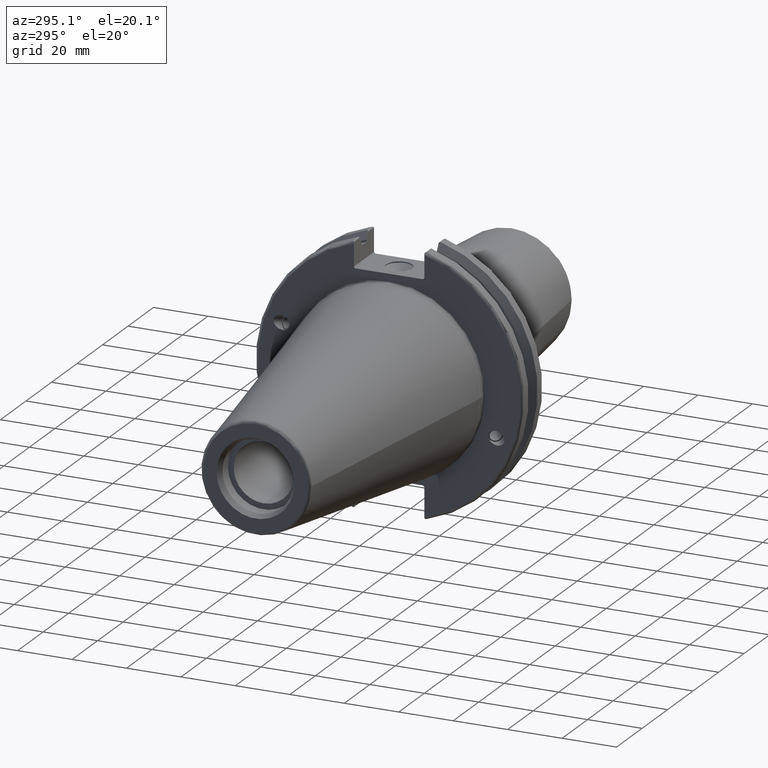
[diagram: clean part render]
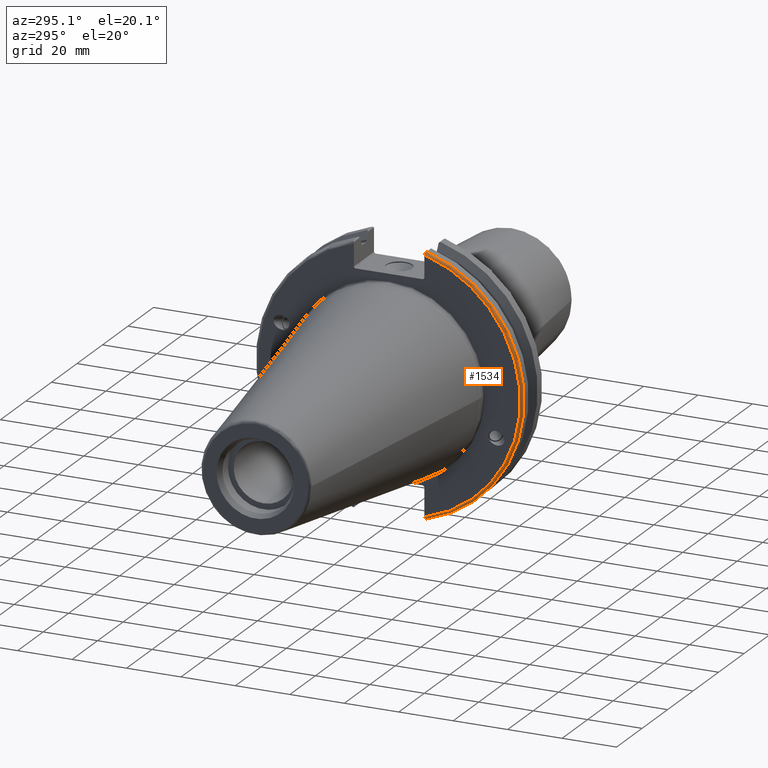
[diagram: same view with one face highlighted and labeled with its STEP entity id]
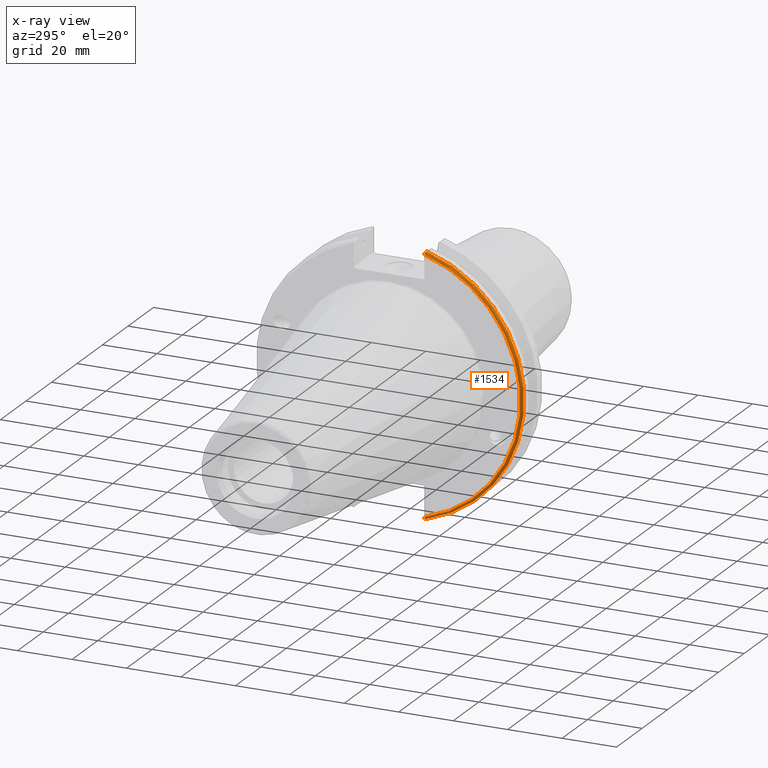
[diagram: x-ray of the same camera — body ghosted, the highlighted face saturated]
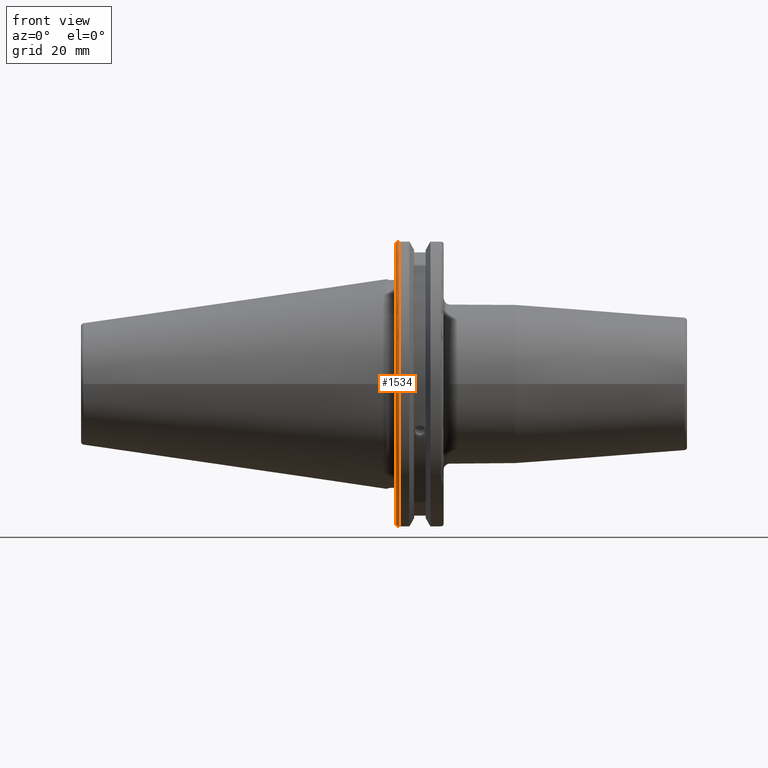
[diagram: same view with one face highlighted and labeled with its STEP entity id]
A machine part, auxiliary view. The second image highlights one B-rep face of the part: STEP entity #1534.
The next image is the same camera in x-ray: the body ghosted, the highlighted face saturated — about 0% of this face is hidden behind the body in this view.
A second angle (front view) of the same face is appended — the face is thin or edge-on in the first view.
In plain terms, the highlighted toroidal blend (fillet) surface has major radius 48.2125 mm and minor (blend) radius 1 mm.
Its self-contained STEP definition (entity closure, byte-faithful):
#62=B_SPLINE_CURVE_WITH_KNOTS('',3,(#2952,#2953,#2954,#2955,#2956,#2957),
 .UNSPECIFIED.,.F.,.F.,(4,2,4),(0.0976892167532858,0.112000071948292,0.150881870548587),
 .UNSPECIFIED.);
#63=B_SPLINE_CURVE_WITH_KNOTS('',3,(#2978,#2979,#2980,#2981,#2982,#2983),
 .UNSPECIFIED.,.F.,.F.,(4,2,4),(0.452859340315922,0.491741138916218,0.506051994111223),
 .UNSPECIFIED.);
#64=B_SPLINE_CURVE_WITH_KNOTS('',3,(#2987,#2988,#2989,#2990,#2991,#2992,
#2993,#2994),.UNSPECIFIED.,.F.,.F.,(4,2,2,4),(-0.104075769062722,-0.0730268503455485,
-0.034363987365627,0.),.UNSPECIFIED.);
#65=B_SPLINE_CURVE_WITH_KNOTS('',3,(#2997,#2998,#2999,#3000,#3001,#3002,
#3003,#3004),.UNSPECIFIED.,.F.,.F.,(4,2,2,4),(0.,0.0343639873656262,0.073026850345548,
0.104075769062723),.UNSPECIFIED.);
#413=FACE_OUTER_BOUND('',#520,.T.);
#520=EDGE_LOOP('',(#1307,#1308,#1309,#1310,#1311,#1312));
#611=CIRCLE('',#1693,48.2125);
#616=CIRCLE('',#1706,49.2125);
#737=VERTEX_POINT('',#2832);
#738=VERTEX_POINT('',#2833);
#761=VERTEX_POINT('',#2951);
#767=VERTEX_POINT('',#2976);
#768=VERTEX_POINT('',#2986);
#769=VERTEX_POINT('',#2995);
#922=EDGE_CURVE('',#737,#738,#611,.T.);
#954=EDGE_CURVE('',#761,#737,#62,.T.);
#964=EDGE_CURVE('',#738,#767,#63,.T.);
#966=EDGE_CURVE('',#767,#768,#64,.T.);
#967=EDGE_CURVE('',#768,#769,#616,.T.);
#968=EDGE_CURVE('',#769,#761,#65,.T.);
#1307=ORIENTED_EDGE('',*,*,#966,.T.);
#1308=ORIENTED_EDGE('',*,*,#967,.T.);
#1309=ORIENTED_EDGE('',*,*,#968,.T.);
#1310=ORIENTED_EDGE('',*,*,#954,.T.);
#1311=ORIENTED_EDGE('',*,*,#922,.T.);
#1312=ORIENTED_EDGE('',*,*,#964,.T.);
#1480=TOROIDAL_SURFACE('',#1705,48.2125,1.);
#1534=ADVANCED_FACE('',(#413),#1480,.T.);
#1693=AXIS2_PLACEMENT_3D('',#2834,#2009,#2010);
#1705=AXIS2_PLACEMENT_3D('',#2985,#2057,#2058);
#1706=AXIS2_PLACEMENT_3D('',#2996,#2059,#2060);
#2009=DIRECTION('center_axis',(1.,0.,0.));
#2010=DIRECTION('ref_axis',(0.,-1.,1.60812264967664E-16));
#2057=DIRECTION('center_axis',(1.,0.,0.));
#2058=DIRECTION('ref_axis',(0.,0.,-1.));
#2059=DIRECTION('center_axis',(-1.,0.,0.));
#2060=DIRECTION('ref_axis',(0.,-1.,1.60812264967664E-16));
#2832=CARTESIAN_POINT('',(3.175,-12.95,46.4407434937254));
#2833=CARTESIAN_POINT('',(3.175,-12.95,-46.4407434937254));
#2834=CARTESIAN_POINT('Origin',(3.175,0.,0.));
#2951=CARTESIAN_POINT('',(3.31949794294344,-12.95,46.9780755322918));
#2952=CARTESIAN_POINT('Ctrl Pts',(3.31949794294344,-12.95,46.9780755322918));
#2953=CARTESIAN_POINT('Ctrl Pts',(3.29341556483839,-12.95,46.9333752207329));
#2954=CARTESIAN_POINT('Ctrl Pts',(3.27115672912336,-12.95,46.887363294568));
#2955=CARTESIAN_POINT('Ctrl Pts',(3.20453530071253,-12.95,46.7230464903732));
#2956=CARTESIAN_POINT('Ctrl Pts',(3.175,-12.95,46.5703494890597));
#2957=CARTESIAN_POINT('Ctrl Pts',(3.175,-12.95,46.4407434937254));
#2976=CARTESIAN_POINT('',(3.31949794294343,-12.95,-46.9780755322917));
#2978=CARTESIAN_POINT('Ctrl Pts',(3.175,-12.95,-46.4407434937254));
#2979=CARTESIAN_POINT('Ctrl Pts',(3.175,-12.95,-46.5703494890597));
#2980=CARTESIAN_POINT('Ctrl Pts',(3.20453530071253,-12.95,-46.7230464903732));
#2981=CARTESIAN_POINT('Ctrl Pts',(3.27115672912336,-12.95,-46.887363294568));
#2982=CARTESIAN_POINT('Ctrl Pts',(3.29341556483838,-12.95,-46.9333752207329));
#2983=CARTESIAN_POINT('Ctrl Pts',(3.31949794294343,-12.95,-46.9780755322917));
#2985=CARTESIAN_POINT('Origin',(4.175,0.,0.));
#2986=CARTESIAN_POINT('',(4.175,-13.4317035994433,-47.3440544806494));
#2987=CARTESIAN_POINT('Ctrl Pts',(3.31949794294343,-12.95,-46.9780755322917));
#2988=CARTESIAN_POINT('Ctrl Pts',(3.36785032278753,-13.0300321736484,-47.0388807469102));
#2989=CARTESIAN_POINT('Ctrl Pts',(3.43235971798504,-13.1083611826073,-47.0983919657547));
#2990=CARTESIAN_POINT('Ctrl Pts',(3.58507512107923,-13.2478194810696,-47.2043467509586));
#2991=CARTESIAN_POINT('Ctrl Pts',(3.70638116490964,-13.3242014686233,-47.2623787015413));
#2992=CARTESIAN_POINT('Ctrl Pts',(3.92661103245834,-13.4067722493645,-47.3251126473446));
#2993=CARTESIAN_POINT('Ctrl Pts',(4.06045337544791,-13.4317035994434,-47.3440544806494));
#2994=CARTESIAN_POINT('Ctrl Pts',(4.175,-13.4317035994434,-47.3440544806494));
#2995=CARTESIAN_POINT('',(4.175,-13.4317035994433,47.3440544806494));
#2996=CARTESIAN_POINT('Origin',(4.175,0.,0.));
#2997=CARTESIAN_POINT('Ctrl Pts',(4.175,-13.4317035994433,47.3440544806494));
#2998=CARTESIAN_POINT('Ctrl Pts',(4.06045337544791,-13.4317035994433,47.3440544806494));
#2999=CARTESIAN_POINT('Ctrl Pts',(3.92661103245835,-13.4067722493645,47.3251126473446));
#3000=CARTESIAN_POINT('Ctrl Pts',(3.70638116490965,-13.3242014686233,47.2623787015413));
#3001=CARTESIAN_POINT('Ctrl Pts',(3.58507512107923,-13.2478194810695,47.2043467509586));
#3002=CARTESIAN_POINT('Ctrl Pts',(3.43235971798504,-13.1083611826073,47.0983919657547));
#3003=CARTESIAN_POINT('Ctrl Pts',(3.36785032278754,-13.0300321736484,47.0388807469102));
#3004=CARTESIAN_POINT('Ctrl Pts',(3.31949794294344,-12.95,46.9780755322918));